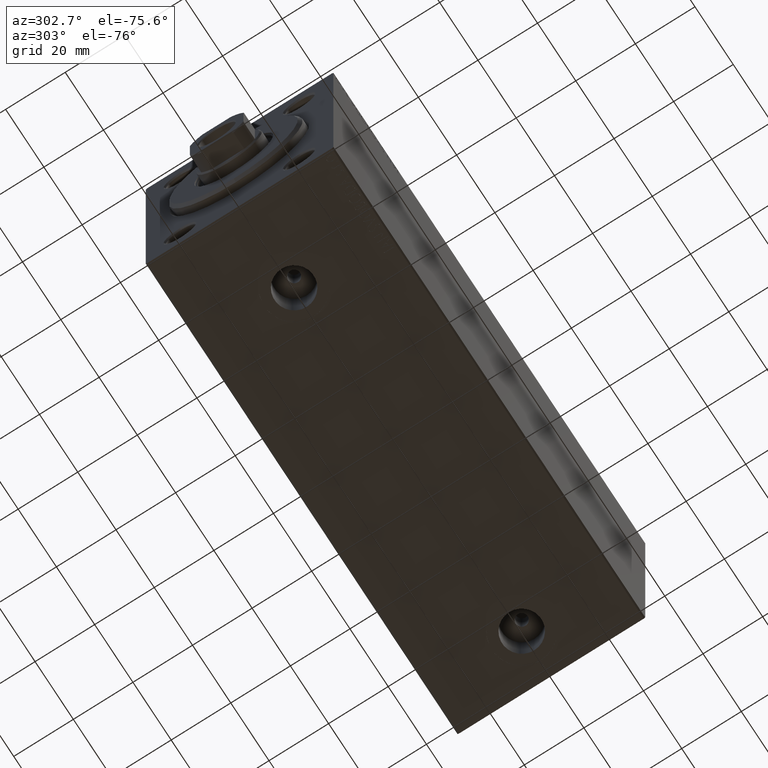
[diagram: clean part render]
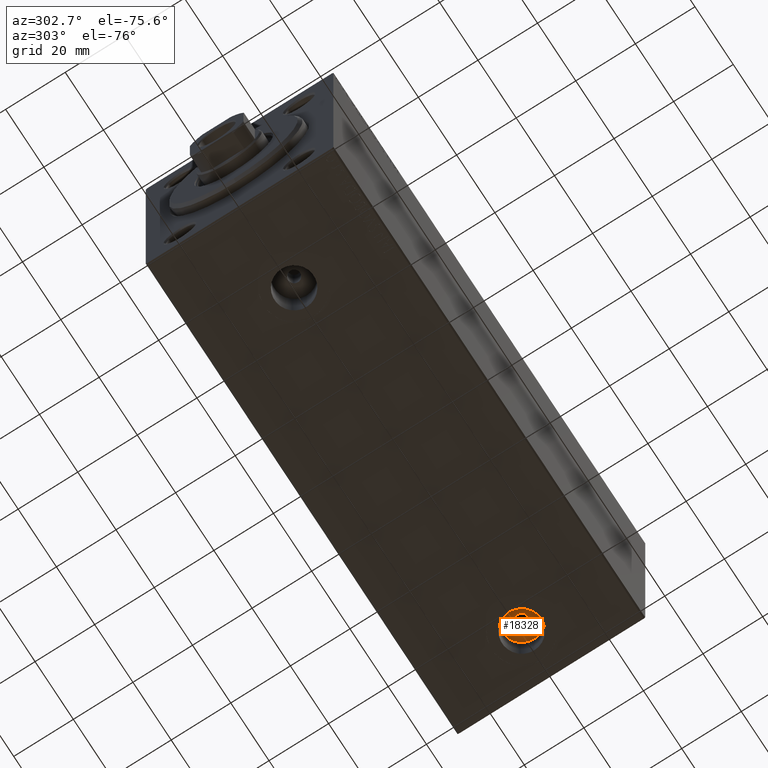
[diagram: same view with one face highlighted and labeled with its STEP entity id]
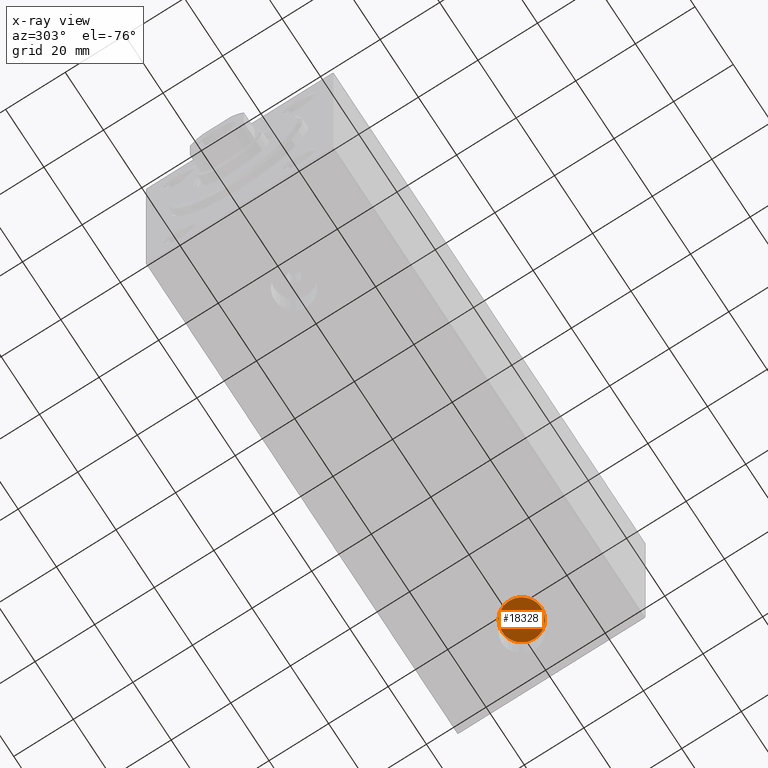
[diagram: x-ray of the same camera — body ghosted, the highlighted face saturated]
A machine part, auxiliary view. The second image highlights one B-rep face of the part: STEP entity #18328.
The next image is the same camera in x-ray: the body ghosted, the highlighted face saturated — about 0% of this face is hidden behind the body in this view.
In plain terms, the highlighted planar face has unit normal (0, 0, -1).
Its self-contained STEP definition (entity closure, byte-faithful):
#1330 = AXIS2_PLACEMENT_3D ( 'NONE', #6204, #5986, #30427 ) ;
#1561 = VERTEX_POINT ( 'NONE', #44500 ) ;
#1577 = DIRECTION ( 'NONE',  ( 0.000000000000000000, 0.000000000000000000, -1.000000000000000000 ) ) ;
#4836 = EDGE_CURVE ( 'NONE', #18783, #6773, #11615, .T. ) ;
#5809 = CARTESIAN_POINT ( 'NONE',  ( 147.5000000000000284, -2.140111449306856041E-14, -29.50000000000000711 ) ) ;
#5986 = DIRECTION ( 'NONE',  ( 0.000000000000000000, 0.000000000000000000, -1.000000000000000000 ) ) ;
#6204 = CARTESIAN_POINT ( 'NONE',  ( 147.5000000000000284, -2.140111449306856041E-14, -29.50000000000000711 ) ) ;
#6773 = VERTEX_POINT ( 'NONE', #32466 ) ;
#8663 = ORIENTED_EDGE ( 'NONE', *, *, #11205, .F. ) ;
#11205 = EDGE_CURVE ( 'NONE', #6773, #18783, #13909, .T. ) ;
#11247 = FACE_OUTER_BOUND ( 'NONE', #14494, .T. ) ;
#11615 = CIRCLE ( 'NONE', #31523, 2.000000000000001776 ) ;
#12256 = DIRECTION ( 'NONE',  ( -1.000000000000000000, 0.000000000000000000, 0.000000000000000000 ) ) ;
#13752 = DIRECTION ( 'NONE',  ( -1.000000000000000000, 0.000000000000000000, 0.000000000000000000 ) ) ;
#13909 = CIRCLE ( 'NONE', #29392, 2.000000000000001776 ) ;
#14059 = ORIENTED_EDGE ( 'NONE', *, *, #21941, .T. ) ;
#14494 = EDGE_LOOP ( 'NONE', ( #31602, #14059 ) ) ;
#16280 = CARTESIAN_POINT ( 'NONE',  ( 140.9200000000000159, -2.140111449306856041E-14, -29.50000000000000711 ) ) ;
#16673 = AXIS2_PLACEMENT_3D ( 'NONE', #17677, #24132, #13752 ) ;
#17159 = CARTESIAN_POINT ( 'NONE',  ( 145.5000000000000284, -2.140111449306856041E-14, -29.50000000000000711 ) ) ;
#17677 = CARTESIAN_POINT ( 'NONE',  ( 147.5000000000000284, -2.140111449306856041E-14, -29.50000000000000711 ) ) ;
#18280 = CIRCLE ( 'NONE', #1330, 6.580000000000002736 ) ;
#18328 = ADVANCED_FACE ( 'NONE', ( #22332, #11247 ), #21867, .T. ) ;
#18783 = VERTEX_POINT ( 'NONE', #17159 ) ;
#21020 = DIRECTION ( 'NONE',  ( -1.000000000000000000, 0.000000000000000000, 0.000000000000000000 ) ) ;
#21867 = PLANE ( 'NONE',  #31278 ) ;
#21941 = EDGE_CURVE ( 'NONE', #1561, #25975, #32123, .T. ) ;
#22332 = FACE_BOUND ( 'NONE', #42674, .T. ) ;
#24132 = DIRECTION ( 'NONE',  ( 0.000000000000000000, 0.000000000000000000, -1.000000000000000000 ) ) ;
#25793 = CARTESIAN_POINT ( 'NONE',  ( 0.000000000000000000, 0.000000000000000000, -29.50000000000000711 ) ) ;
#25975 = VERTEX_POINT ( 'NONE', #16280 ) ;
#29392 = AXIS2_PLACEMENT_3D ( 'NONE', #5809, #33920, #12256 ) ;
#30427 = DIRECTION ( 'NONE',  ( -1.000000000000000000, 0.000000000000000000, 0.000000000000000000 ) ) ;
#30440 = EDGE_CURVE ( 'NONE', #25975, #1561, #18280, .T. ) ;
#31278 = AXIS2_PLACEMENT_3D ( 'NONE', #25793, #1577, #36152 ) ;
#31523 = AXIS2_PLACEMENT_3D ( 'NONE', #41315, #37840, #21020 ) ;
#31602 = ORIENTED_EDGE ( 'NONE', *, *, #30440, .T. ) ;
#31895 = ORIENTED_EDGE ( 'NONE', *, *, #4836, .F. ) ;
#32123 = CIRCLE ( 'NONE', #16673, 6.580000000000002736 ) ;
#32466 = CARTESIAN_POINT ( 'NONE',  ( 149.5000000000000284, -2.115618513323909327E-14, -29.50000000000000711 ) ) ;
#33920 = DIRECTION ( 'NONE',  ( 0.000000000000000000, 0.000000000000000000, -1.000000000000000000 ) ) ;
#36152 = DIRECTION ( 'NONE',  ( -1.000000000000000000, 0.000000000000000000, -0.000000000000000000 ) ) ;
#37840 = DIRECTION ( 'NONE',  ( 0.000000000000000000, 0.000000000000000000, -1.000000000000000000 ) ) ;
#41315 = CARTESIAN_POINT ( 'NONE',  ( 147.5000000000000284, -2.140111449306856041E-14, -29.50000000000000711 ) ) ;
#42674 = EDGE_LOOP ( 'NONE', ( #31895, #8663 ) ) ;
#44500 = CARTESIAN_POINT ( 'NONE',  ( 154.0800000000000125, -2.059529689922959822E-14, -29.50000000000000711 ) ) ;